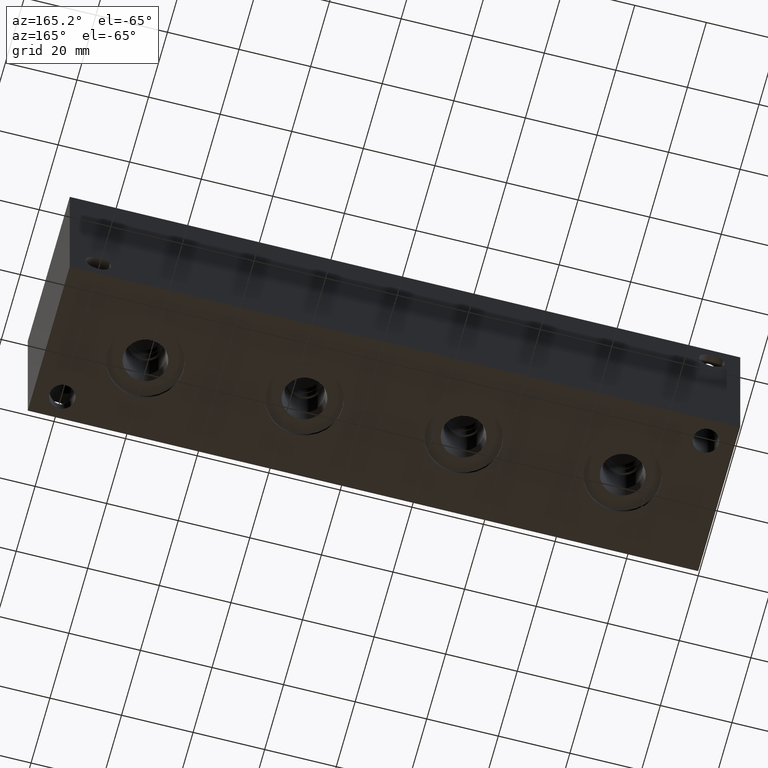
[diagram: clean part render]
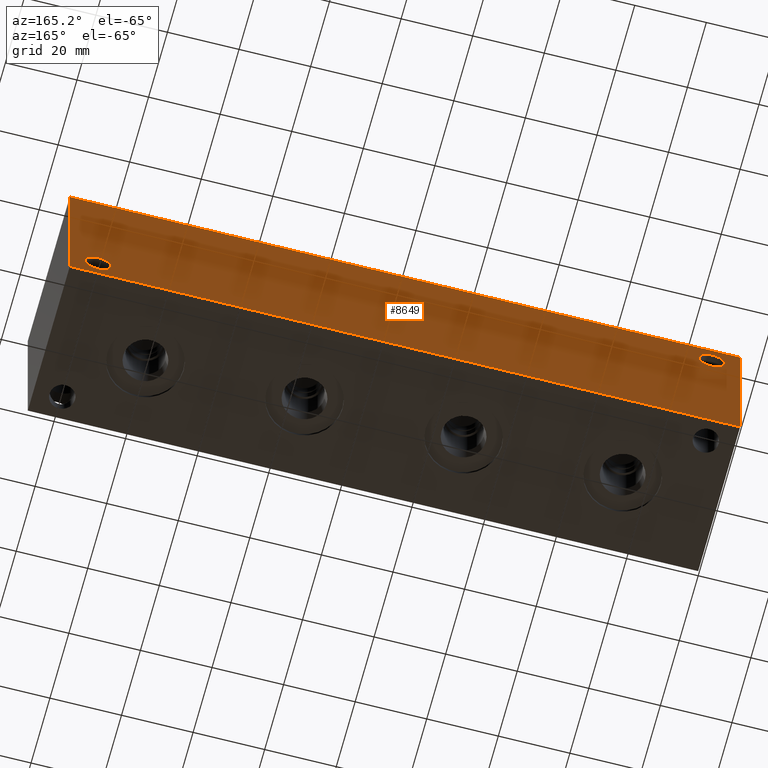
[diagram: same view with one face highlighted and labeled with its STEP entity id]
A machine part, auxiliary view. The second image highlights one B-rep face of the part: STEP entity #8649.
In plain terms, the highlighted planar face has unit normal (0, 1, 0).
Its self-contained STEP definition (entity closure, byte-faithful):
#183=CIRCLE('',#8908,3.5687);
#186=CIRCLE('',#8917,3.5687);
#453=FACE_BOUND('',#1650,.T.);
#454=FACE_BOUND('',#1651,.T.);
#1146=FACE_OUTER_BOUND('',#1649,.T.);
#1649=EDGE_LOOP('',(#7626,#7627,#7628,#7629));
#1650=EDGE_LOOP('',(#7630));
#1651=EDGE_LOOP('',(#7631));
#1948=LINE('',#13083,#2735);
#2449=LINE('',#14826,#3236);
#2450=LINE('',#14829,#3237);
#2451=LINE('',#14830,#3238);
#2735=VECTOR('',#9744,10.);
#3236=VECTOR('',#11337,10.);
#3237=VECTOR('',#11340,10.);
#3238=VECTOR('',#11341,10.);
#3520=VERTEX_POINT('',#13080);
#3521=VERTEX_POINT('',#13082);
#3800=VERTEX_POINT('',#14028);
#3805=VERTEX_POINT('',#14044);
#4032=VERTEX_POINT('',#14822);
#4034=VERTEX_POINT('',#14828);
#4452=EDGE_CURVE('',#3520,#3521,#1948,.T.);
#4867=EDGE_CURVE('',#3800,#3800,#183,.T.);
#4876=EDGE_CURVE('',#3805,#3805,#186,.T.);
#5241=EDGE_CURVE('',#4032,#3521,#2449,.T.);
#5242=EDGE_CURVE('',#4034,#4032,#2450,.T.);
#5243=EDGE_CURVE('',#4034,#3520,#2451,.T.);
#7626=ORIENTED_EDGE('',*,*,#5242,.T.);
#7627=ORIENTED_EDGE('',*,*,#5241,.T.);
#7628=ORIENTED_EDGE('',*,*,#4452,.F.);
#7629=ORIENTED_EDGE('',*,*,#5243,.F.);
#7630=ORIENTED_EDGE('',*,*,#4867,.T.);
#7631=ORIENTED_EDGE('',*,*,#4876,.T.);
#7914=PLANE('',#9295);
#8649=ADVANCED_FACE('',(#1146,#453,#454),#7914,.T.);
#8908=AXIS2_PLACEMENT_3D('',#14030,#10443,#10444);
#8917=AXIS2_PLACEMENT_3D('',#14046,#10463,#10464);
#9295=AXIS2_PLACEMENT_3D('',#14827,#11338,#11339);
#9744=DIRECTION('',(-1.,0.,0.));
#10443=DIRECTION('center_axis',(0.,-1.,0.));
#10444=DIRECTION('ref_axis',(1.,0.,0.));
#10463=DIRECTION('center_axis',(0.,-1.,0.));
#10464=DIRECTION('ref_axis',(1.,0.,0.));
#11337=DIRECTION('',(0.,0.,1.));
#11338=DIRECTION('center_axis',(0.,1.,0.));
#11339=DIRECTION('ref_axis',(-1.,0.,0.));
#11340=DIRECTION('',(-1.,0.,0.));
#11341=DIRECTION('',(0.,0.,1.));
#13080=CARTESIAN_POINT('',(187.325,44.45,44.45));
#13082=CARTESIAN_POINT('',(0.,44.45,44.45));
#13083=CARTESIAN_POINT('',(187.325,44.45,44.45));
#14028=CARTESIAN_POINT('',(4.3561,44.45,38.1));
#14030=CARTESIAN_POINT('Origin',(7.9248,44.45,38.1));
#14044=CARTESIAN_POINT('',(175.8061,44.45,6.35));
#14046=CARTESIAN_POINT('Origin',(179.3748,44.45,6.35));
#14822=CARTESIAN_POINT('',(0.,44.45,0.));
#14826=CARTESIAN_POINT('',(0.,44.45,0.));
#14827=CARTESIAN_POINT('Origin',(187.325,44.45,0.));
#14828=CARTESIAN_POINT('',(187.325,44.45,0.));
#14829=CARTESIAN_POINT('',(187.325,44.45,0.));
#14830=CARTESIAN_POINT('',(187.325,44.45,0.));